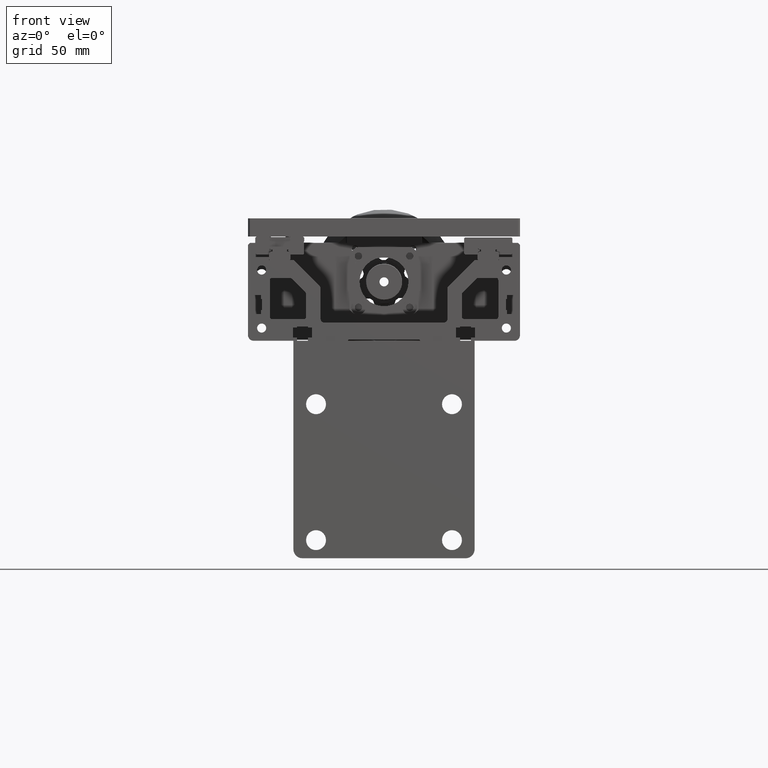
[diagram: clean part render]
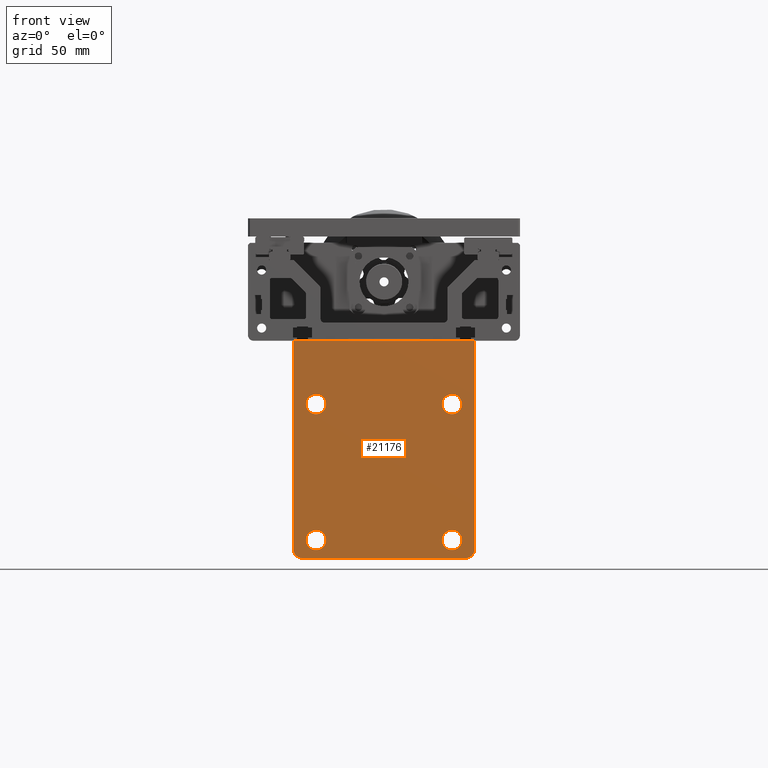
[diagram: same view with one face highlighted and labeled with its STEP entity id]
A machine part, front view. The second image highlights one B-rep face of the part: STEP entity #21176.
In plain terms, the highlighted planar face has unit normal (0, 1, 0).
Its self-contained STEP definition (entity closure, byte-faithful):
#104 = CARTESIAN_POINT ( 'NONE',  ( -60.57974840948065065, -114.7134697455980046, -49.99999999999961631 ) ) ;
#503 = CARTESIAN_POINT ( 'NONE',  ( -66.07974840947986195, -114.7134697455980046, 25.00000000000044054 ) ) ;
#521 = LINE ( 'NONE', #24129, #28268 ) ;
#564 = DIRECTION ( 'NONE',  ( 1.000000000000000000, 0.000000000000000000, -1.072374512422024024E-14 ) ) ;
#886 = CARTESIAN_POINT ( 'NONE',  ( -73.07974840947950668, -114.7134697455980046, 60.00000000000051870 ) ) ;
#1508 = CARTESIAN_POINT ( 'NONE',  ( 8.920251590520123841, -114.7134697455980046, 24.99999999999965894 ) ) ;
#1547 = CARTESIAN_POINT ( 'NONE',  ( 21.92025159051924277, -114.7134697455980046, -60.00000000000048317 ) ) ;
#1867 = CARTESIAN_POINT ( 'NONE',  ( -73.07974840948070039, -114.7134697455980046, -54.99999999999949551 ) ) ;
#1892 = CARTESIAN_POINT ( 'NONE',  ( 26.92025159052051464, -114.7134697455980046, 59.99999999999946709 ) ) ;
#1938 = DIRECTION ( 'NONE',  ( 1.000000000000000000, 0.000000000000000000, -1.072374512422026548E-14 ) ) ;
#2019 = AXIS2_PLACEMENT_3D ( 'NONE', #22463, #22786, #32712 ) ;
#2655 = LINE ( 'NONE', #18156, #20358 ) ;
#2680 = CARTESIAN_POINT ( 'NONE',  ( -68.07974840948075723, -114.7134697455980046, -59.99999999999953815 ) ) ;
#2978 = FACE_BOUND ( 'NONE', #8502, .T. ) ;
#3490 = DIRECTION ( 'NONE',  ( -0.000000000000000000, 1.000000000000000000, -0.000000000000000000 ) ) ;
#3549 = DIRECTION ( 'NONE',  ( 0.000000000000000000, -1.000000000000000000, 0.000000000000000000 ) ) ;
#4060 = VERTEX_POINT ( 'NONE', #1547 ) ;
#4075 = CARTESIAN_POINT ( 'NONE',  ( -66.07974840948065776, -114.7134697455980046, -49.99999999999955946 ) ) ;
#4203 = AXIS2_PLACEMENT_3D ( 'NONE', #8711, #24605, #11765 ) ;
#4597 = CIRCLE ( 'NONE', #6195, 5.500000000000007994 ) ;
#4937 = CIRCLE ( 'NONE', #26407, 5.499999999999998224 ) ;
#4992 = DIRECTION ( 'NONE',  ( 0.000000000000000000, -1.000000000000000000, 0.000000000000000000 ) ) ;
#5281 = CARTESIAN_POINT ( 'NONE',  ( -73.07974840948075723, -114.7134697455980046, -59.99999999999948130 ) ) ;
#5640 = DIRECTION ( 'NONE',  ( -1.000000000000000000, 0.000000000000000000, 1.047444401652940007E-14 ) ) ;
#5960 = CARTESIAN_POINT ( 'NONE',  ( 21.92025159051929606, -114.7134697455980046, -55.00000000000049027 ) ) ;
#6081 = VERTEX_POINT ( 'NONE', #14161 ) ;
#6195 = AXIS2_PLACEMENT_3D ( 'NONE', #11811, #3549, #13801 ) ;
#6246 = CIRCLE ( 'NONE', #15410, 5.499999999999998224 ) ;
#6837 = VECTOR ( 'NONE', #18904, 1000.000000000000000 ) ;
#7224 = VERTEX_POINT ( 'NONE', #16519 ) ;
#7474 = VERTEX_POINT ( 'NONE', #25281 ) ;
#7666 = VERTEX_POINT ( 'NONE', #503 ) ;
#8039 = CARTESIAN_POINT ( 'NONE',  ( 14.42025159051934757, -114.7134697455980046, -50.00000000000040501 ) ) ;
#8114 = DIRECTION ( 'NONE',  ( 0.000000000000000000, -1.000000000000000000, 0.000000000000000000 ) ) ;
#8362 = CARTESIAN_POINT ( 'NONE',  ( -68.07974840948070039, -114.7134697455980046, -54.99999999999955236 ) ) ;
#8502 = EDGE_LOOP ( 'NONE', ( #9891, #12846 ) ) ;
#8711 = CARTESIAN_POINT ( 'NONE',  ( 14.42025159052013450, -114.7134697455980046, 24.99999999999959854 ) ) ;
#8812 = VERTEX_POINT ( 'NONE', #1508 ) ;
#8983 = EDGE_CURVE ( 'NONE', #16711, #17579, #4937, .T. ) ;
#9218 = EDGE_CURVE ( 'NONE', #15799, #4060, #25596, .T. ) ;
#9414 = EDGE_CURVE ( 'NONE', #6081, #7666, #26679, .T. ) ;
#9697 = EDGE_CURVE ( 'NONE', #4060, #14630, #10827, .T. ) ;
#9808 = ORIENTED_EDGE ( 'NONE', *, *, #32804, .F. ) ;
#9891 = ORIENTED_EDGE ( 'NONE', *, *, #11536, .F. ) ;
#10721 = PLANE ( 'NONE',  #18088 ) ;
#10774 = DIRECTION ( 'NONE',  ( -1.000000000000000000, 0.000000000000000000, 1.047444401652940007E-14 ) ) ;
#10827 = LINE ( 'NONE', #5281, #23067 ) ;
#11536 = EDGE_CURVE ( 'NONE', #26656, #7474, #33179, .T. ) ;
#11765 = DIRECTION ( 'NONE',  ( 1.000000000000000000, 0.000000000000000000, -1.072374512422024024E-14 ) ) ;
#11811 = CARTESIAN_POINT ( 'NONE',  ( 14.42025159051934757, -114.7134697455980046, -50.00000000000040501 ) ) ;
#11881 = EDGE_CURVE ( 'NONE', #7666, #6081, #18688, .T. ) ;
#12096 = ORIENTED_EDGE ( 'NONE', *, *, #23918, .F. ) ;
#12131 = AXIS2_PLACEMENT_3D ( 'NONE', #19140, #14697, #1938 ) ;
#12518 = ORIENTED_EDGE ( 'NONE', *, *, #18592, .T. ) ;
#12810 = EDGE_LOOP ( 'NONE', ( #13268, #12096 ) ) ;
#12846 = ORIENTED_EDGE ( 'NONE', *, *, #21656, .F. ) ;
#12902 = EDGE_CURVE ( 'NONE', #8812, #7224, #18732, .T. ) ;
#13062 = EDGE_CURVE ( 'NONE', #27389, #15799, #2655, .T. ) ;
#13268 = ORIENTED_EDGE ( 'NONE', *, *, #8983, .F. ) ;
#13373 = DIRECTION ( 'NONE',  ( -0.000000000000000000, 1.000000000000000000, -0.000000000000000000 ) ) ;
#13546 = DIRECTION ( 'NONE',  ( 1.000000000000000000, 0.000000000000000000, -1.009293658750142596E-14 ) ) ;
#13801 = DIRECTION ( 'NONE',  ( 1.000000000000000000, 0.000000000000000000, -1.009293658750140861E-14 ) ) ;
#13912 = DIRECTION ( 'NONE',  ( 1.000000000000000000, 0.000000000000000000, -1.110223024625158749E-14 ) ) ;
#14161 = CARTESIAN_POINT ( 'NONE',  ( -55.07974840947986905, -114.7134697455980046, 25.00000000000032685 ) ) ;
#14630 = VERTEX_POINT ( 'NONE', #2680 ) ;
#14697 = DIRECTION ( 'NONE',  ( 0.000000000000000000, -1.000000000000000000, 0.000000000000000000 ) ) ;
#15410 = AXIS2_PLACEMENT_3D ( 'NONE', #31600, #19160, #13546 ) ;
#15541 = DIRECTION ( 'NONE',  ( -1.000000000000000000, 0.000000000000000000, 1.047444401652940007E-14 ) ) ;
#15754 = FACE_BOUND ( 'NONE', #28441, .T. ) ;
#15799 = VERTEX_POINT ( 'NONE', #18487 ) ;
#16053 = ORIENTED_EDGE ( 'NONE', *, *, #9218, .F. ) ;
#16086 = DIRECTION ( 'NONE',  ( 1.000000000000000000, 0.000000000000000000, -9.714451465470138661E-15 ) ) ;
#16519 = CARTESIAN_POINT ( 'NONE',  ( 19.92025159052014516, -114.7134697455980046, 24.99999999999954170 ) ) ;
#16563 = ORIENTED_EDGE ( 'NONE', *, *, #9414, .F. ) ;
#16711 = VERTEX_POINT ( 'NONE', #26341 ) ;
#17257 = VERTEX_POINT ( 'NONE', #32464 ) ;
#17579 = VERTEX_POINT ( 'NONE', #4075 ) ;
#17950 = ORIENTED_EDGE ( 'NONE', *, *, #27910, .F. ) ;
#18088 = AXIS2_PLACEMENT_3D ( 'NONE', #21005, #31276, #5640 ) ;
#18156 = CARTESIAN_POINT ( 'NONE',  ( 26.92025159051924632, -114.7134697455980046, -60.00000000000052580 ) ) ;
#18345 = DIRECTION ( 'NONE',  ( 0.000000000000000000, -1.000000000000000000, 0.000000000000000000 ) ) ;
#18487 = CARTESIAN_POINT ( 'NONE',  ( 26.92025159051929961, -114.7134697455980046, -55.00000000000053291 ) ) ;
#18592 = EDGE_CURVE ( 'NONE', #27389, #17257, #521, .T. ) ;
#18688 = CIRCLE ( 'NONE', #2019, 5.499999999999998224 ) ;
#18732 = CIRCLE ( 'NONE', #4203, 5.500000000000011546 ) ;
#18904 = DIRECTION ( 'NONE',  ( 1.047444401652940007E-14, 0.000000000000000000, 1.000000000000000000 ) ) ;
#19140 = CARTESIAN_POINT ( 'NONE',  ( -60.57974840947986195, -114.7134697455980046, 25.00000000000038369 ) ) ;
#19160 = DIRECTION ( 'NONE',  ( 0.000000000000000000, -1.000000000000000000, 0.000000000000000000 ) ) ;
#20324 = CARTESIAN_POINT ( 'NONE',  ( 19.92025159051936001, -114.7134697455980046, -50.00000000000046185 ) ) ;
#20358 = VECTOR ( 'NONE', #25739, 1000.000000000000000 ) ;
#20595 = ORIENTED_EDGE ( 'NONE', *, *, #12902, .F. ) ;
#20629 = VERTEX_POINT ( 'NONE', #1867 ) ;
#21005 = CARTESIAN_POINT ( 'NONE',  ( -73.07974840948075723, -114.7134697455980046, -59.99999999999948130 ) ) ;
#21176 = ADVANCED_FACE ( 'NONE', ( #28619, #15754, #26066, #2978, #25572 ), #10721, .F. ) ;
#21446 = EDGE_LOOP ( 'NONE', ( #16563, #22304 ) ) ;
#21656 = EDGE_CURVE ( 'NONE', #7474, #26656, #4597, .T. ) ;
#21922 = AXIS2_PLACEMENT_3D ( 'NONE', #8039, #18345, #28643 ) ;
#22304 = ORIENTED_EDGE ( 'NONE', *, *, #11881, .F. ) ;
#22404 = AXIS2_PLACEMENT_3D ( 'NONE', #32785, #8114, #564 ) ;
#22463 = CARTESIAN_POINT ( 'NONE',  ( -60.57974840947986195, -114.7134697455980046, 25.00000000000038369 ) ) ;
#22786 = DIRECTION ( 'NONE',  ( 0.000000000000000000, -1.000000000000000000, 0.000000000000000000 ) ) ;
#23067 = VECTOR ( 'NONE', #15541, 1000.000000000000000 ) ;
#23501 = ORIENTED_EDGE ( 'NONE', *, *, #13062, .F. ) ;
#23918 = EDGE_CURVE ( 'NONE', #17579, #16711, #6246, .T. ) ;
#23989 = LINE ( 'NONE', #886, #6837 ) ;
#24129 = CARTESIAN_POINT ( 'NONE',  ( -73.07974840947950668, -114.7134697455980046, 60.00000000000051870 ) ) ;
#24340 = CIRCLE ( 'NONE', #28646, 4.999999999999990230 ) ;
#24588 = CIRCLE ( 'NONE', #22404, 5.500000000000011546 ) ;
#24605 = DIRECTION ( 'NONE',  ( 0.000000000000000000, -1.000000000000000000, 0.000000000000000000 ) ) ;
#24668 = EDGE_CURVE ( 'NONE', #20629, #17257, #23989, .T. ) ;
#25281 = CARTESIAN_POINT ( 'NONE',  ( 8.920251590519336915, -114.7134697455980046, -50.00000000000034817 ) ) ;
#25572 = FACE_BOUND ( 'NONE', #12810, .T. ) ;
#25596 = CIRCLE ( 'NONE', #28834, 4.999999999999990230 ) ;
#25739 = DIRECTION ( 'NONE',  ( -1.047444401652940007E-14, -0.000000000000000000, -1.000000000000000000 ) ) ;
#26066 = FACE_BOUND ( 'NONE', #21446, .T. ) ;
#26341 = CARTESIAN_POINT ( 'NONE',  ( -55.07974840948066486, -114.7134697455980046, -49.99999999999968026 ) ) ;
#26407 = AXIS2_PLACEMENT_3D ( 'NONE', #104, #4992, #28274 ) ;
#26656 = VERTEX_POINT ( 'NONE', #20324 ) ;
#26679 = CIRCLE ( 'NONE', #12131, 5.499999999999998224 ) ;
#27389 = VERTEX_POINT ( 'NONE', #1892 ) ;
#27521 = ORIENTED_EDGE ( 'NONE', *, *, #9697, .F. ) ;
#27910 = EDGE_CURVE ( 'NONE', #14630, #20629, #24340, .T. ) ;
#28268 = VECTOR ( 'NONE', #10774, 1000.000000000000000 ) ;
#28274 = DIRECTION ( 'NONE',  ( 1.000000000000000000, 0.000000000000000000, -1.009293658750142596E-14 ) ) ;
#28290 = ORIENTED_EDGE ( 'NONE', *, *, #24668, .F. ) ;
#28441 = EDGE_LOOP ( 'NONE', ( #9808, #20595 ) ) ;
#28619 = FACE_OUTER_BOUND ( 'NONE', #30972, .T. ) ;
#28643 = DIRECTION ( 'NONE',  ( 1.000000000000000000, 0.000000000000000000, -1.009293658750140861E-14 ) ) ;
#28646 = AXIS2_PLACEMENT_3D ( 'NONE', #8362, #3490, #13912 ) ;
#28834 = AXIS2_PLACEMENT_3D ( 'NONE', #5960, #13373, #16086 ) ;
#30972 = EDGE_LOOP ( 'NONE', ( #17950, #27521, #16053, #23501, #12518, #28290 ) ) ;
#31276 = DIRECTION ( 'NONE',  ( 0.000000000000000000, 1.000000000000000000, 0.000000000000000000 ) ) ;
#31600 = CARTESIAN_POINT ( 'NONE',  ( -60.57974840948065065, -114.7134697455980046, -49.99999999999961631 ) ) ;
#32464 = CARTESIAN_POINT ( 'NONE',  ( -73.07974840947950668, -114.7134697455980046, 60.00000000000051870 ) ) ;
#32712 = DIRECTION ( 'NONE',  ( 1.000000000000000000, 0.000000000000000000, -1.072374512422026548E-14 ) ) ;
#32785 = CARTESIAN_POINT ( 'NONE',  ( 14.42025159052013450, -114.7134697455980046, 24.99999999999959854 ) ) ;
#32804 = EDGE_CURVE ( 'NONE', #7224, #8812, #24588, .T. ) ;
#33179 = CIRCLE ( 'NONE', #21922, 5.500000000000007994 ) ;